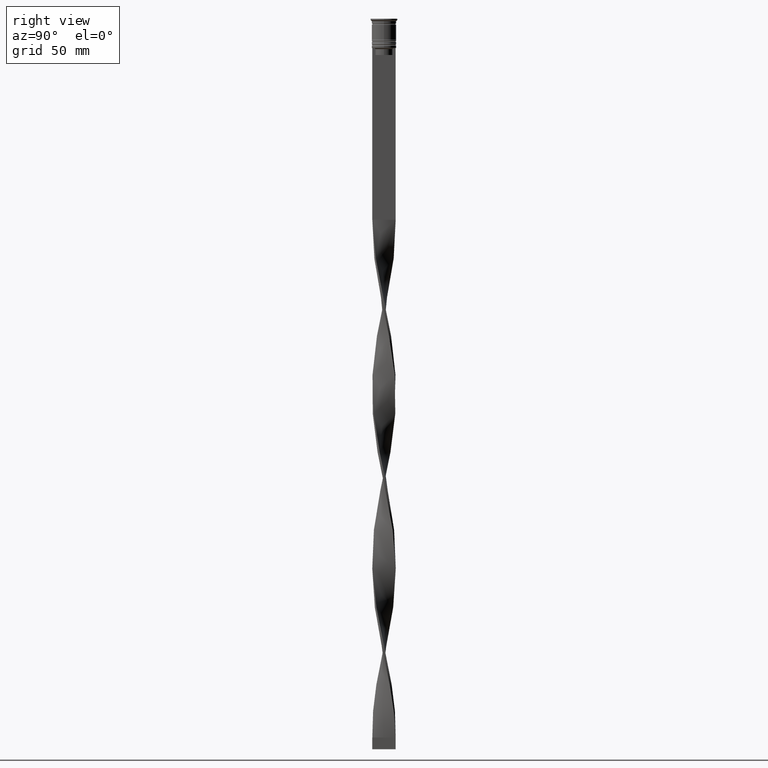
[diagram: clean part render]
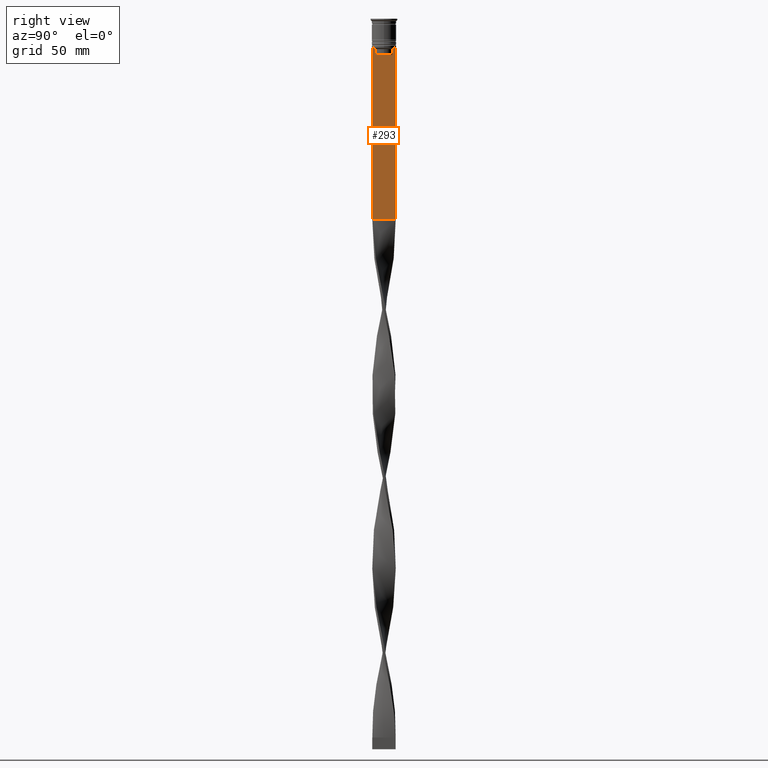
[diagram: same view with one face highlighted and labeled with its STEP entity id]
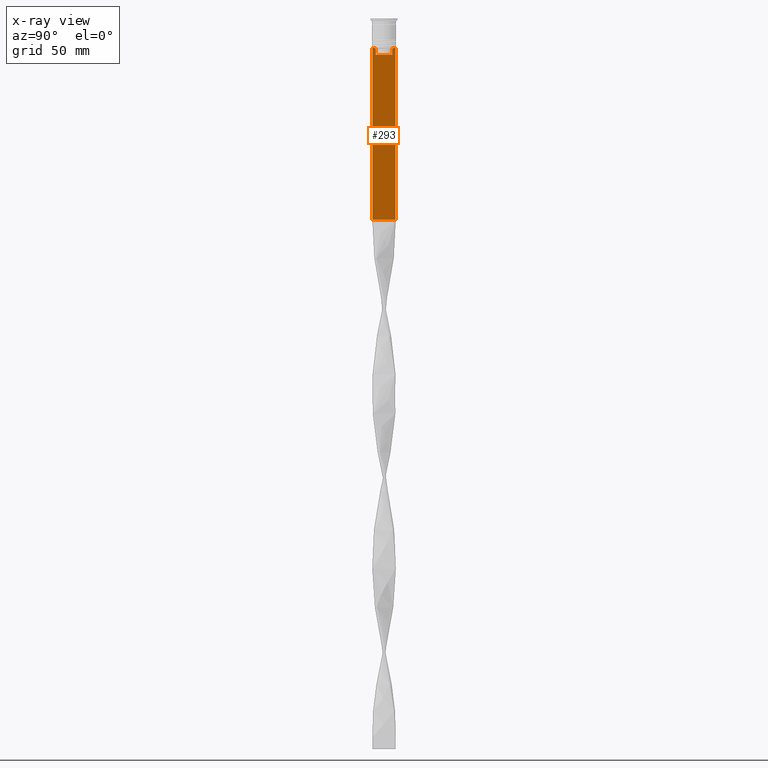
[diagram: x-ray of the same camera — body ghosted, the highlighted face saturated]
A machine part, right view. The second image highlights one B-rep face of the part: STEP entity #293.
The next image is the same camera in x-ray: the body ghosted, the highlighted face saturated — about 0% of this face is hidden behind the body in this view.
In plain terms, the highlighted planar face has unit normal (-1, 0, 0).
Its self-contained STEP definition (entity closure, byte-faithful):
#3 = LINE ( 'NONE', #247, #2136 ) ;
#41 = VECTOR ( 'NONE', #837, 1000.000000000000000 ) ;
#108 = ORIENTED_EDGE ( 'NONE', *, *, #1392, .T. ) ;
#111 = ORIENTED_EDGE ( 'NONE', *, *, #1682, .T. ) ;
#186 = EDGE_CURVE ( 'NONE', #315, #542, #1323, .T. ) ;
#189 = LINE ( 'NONE', #2352, #41 ) ;
#199 = CARTESIAN_POINT ( 'NONE',  ( 0.5000000000000000000, -4.119769411022908834, -12.50000000000000000 ) ) ;
#239 = VERTEX_POINT ( 'NONE', #3325 ) ;
#247 = CARTESIAN_POINT ( 'NONE',  ( 0.5000000000000000000, -4.999999999999999112, -2.450124378879110054 ) ) ;
#270 = ORIENTED_EDGE ( 'NONE', *, *, #1343, .T. ) ;
#293 = ADVANCED_FACE ( 'NONE', ( #362 ), #2215, .F. ) ;
#315 = VERTEX_POINT ( 'NONE', #3136 ) ;
#321 = DIRECTION ( 'NONE',  ( 0.000000000000000000, 1.000000000000000000, 0.000000000000000000 ) ) ;
#324 = DIRECTION ( 'NONE',  ( 0.000000000000000000, 0.000000000000000000, 1.000000000000000000 ) ) ;
#336 = VERTEX_POINT ( 'NONE', #942 ) ;
#339 = VERTEX_POINT ( 'NONE', #3397 ) ;
#362 = FACE_OUTER_BOUND ( 'NONE', #1913, .T. ) ;
#366 = DIRECTION ( 'NONE',  ( 0.000000000000000000, 0.000000000000000000, -1.000000000000000000 ) ) ;
#382 = CARTESIAN_POINT ( 'NONE',  ( 0.5000000000000000000, 3.951794205566887985, -12.66675159355373737 ) ) ;
#390 = ORIENTED_EDGE ( 'NONE', *, *, #186, .T. ) ;
#399 = CARTESIAN_POINT ( 'NONE',  ( 0.5000000000000000000, 3.783746449387932476, -12.83342999751715752 ) ) ;
#522 = LINE ( 'NONE', #1738, #1945 ) ;
#542 = VERTEX_POINT ( 'NONE', #1853 ) ;
#587 = CARTESIAN_POINT ( 'NONE',  ( 0.5000000000000000000, 5.000000000000000888, -86.00000000000000000 ) ) ;
#627 = ORIENTED_EDGE ( 'NONE', *, *, #776, .T. ) ;
#738 = VECTOR ( 'NONE', #366, 1000.000000000000000 ) ;
#776 = EDGE_CURVE ( 'NONE', #239, #339, #2794, .T. ) ;
#798 = VECTOR ( 'NONE', #3765, 1000.000000000000000 ) ;
#837 = DIRECTION ( 'NONE',  ( 0.000000000000000000, -1.000000000000000000, 0.000000000000000000 ) ) ;
#900 = EDGE_CURVE ( 'NONE', #2702, #3054, #3, .T. ) ;
#917 = LINE ( 'NONE', #3916, #1376 ) ;
#942 = CARTESIAN_POINT ( 'NONE',  ( 0.5000000000000000000, 3.615591237958188042, -13.00000000000000178 ) ) ;
#994 = VERTEX_POINT ( 'NONE', #587 ) ;
#1014 = EDGE_CURVE ( 'NONE', #3054, #994, #917, .T. ) ;
#1041 = CARTESIAN_POINT ( 'NONE',  ( 0.5000000000000000000, 4.119769411022908834, -12.50000000000000000 ) ) ;
#1059 = CARTESIAN_POINT ( 'NONE',  ( 0.5000000000000000000, 3.615591237958188486, -15.50000000000000000 ) ) ;
#1086 = CARTESIAN_POINT ( 'NONE',  ( 0.5000000000000000000, -3.951794168112527927, -12.66675163073525923 ) ) ;
#1195 = ORIENTED_EDGE ( 'NONE', *, *, #1014, .T. ) ;
#1268 = EDGE_CURVE ( 'NONE', #336, #1430, #2798, .T. ) ;
#1323 = LINE ( 'NONE', #3070, #1497 ) ;
#1343 = EDGE_CURVE ( 'NONE', #3720, #239, #1698, .T. ) ;
#1376 = VECTOR ( 'NONE', #321, 1000.000000000000000 ) ;
#1392 = EDGE_CURVE ( 'NONE', #339, #2702, #522, .T. ) ;
#1430 = VERTEX_POINT ( 'NONE', #1059 ) ;
#1497 = VECTOR ( 'NONE', #1901, 1000.000000000000000 ) ;
#1505 = ORIENTED_EDGE ( 'NONE', *, *, #1268, .T. ) ;
#1563 = VECTOR ( 'NONE', #3522, 1000.000000000000000 ) ;
#1600 = EDGE_CURVE ( 'NONE', #315, #994, #2561, .T. ) ;
#1652 = B_SPLINE_CURVE_WITH_KNOTS ( 'NONE', 3,
 ( #1041, #382, #399, #2868 ),
 .UNSPECIFIED., .F., .F.,
 ( 4, 4 ),
 ( 0.007067514914986626831, 0.007777582239375525376 ),
 .UNSPECIFIED. ) ;
#1682 = EDGE_CURVE ( 'NONE', #542, #336, #1652, .T. ) ;
#1698 = LINE ( 'NONE', #3808, #1563 ) ;
#1719 = CARTESIAN_POINT ( 'NONE',  ( 0.5000000000000000000, 3.615591237958188042, 0.000000000000000000 ) ) ;
#1738 = CARTESIAN_POINT ( 'NONE',  ( 0.5000000000000000000, -4.999999999999999112, -12.50000000000000000 ) ) ;
#1774 = CARTESIAN_POINT ( 'NONE',  ( 0.5000000000000000000, -4.999999999999999112, -12.50000000000000000 ) ) ;
#1853 = CARTESIAN_POINT ( 'NONE',  ( 0.5000000000000000000, 4.119769411022908834, -12.50000000000000000 ) ) ;
#1901 = DIRECTION ( 'NONE',  ( 0.000000000000000000, -1.000000000000000000, 0.000000000000000000 ) ) ;
#1913 = EDGE_LOOP ( 'NONE', ( #390, #111, #1505, #2117, #270, #627, #108, #1988, #1195, #3218 ) ) ;
#1945 = VECTOR ( 'NONE', #3215, 1000.000000000000000 ) ;
#1988 = ORIENTED_EDGE ( 'NONE', *, *, #900, .T. ) ;
#2117 = ORIENTED_EDGE ( 'NONE', *, *, #3490, .T. ) ;
#2136 = VECTOR ( 'NONE', #3642, 1000.000000000000000 ) ;
#2159 = CARTESIAN_POINT ( 'NONE',  ( 0.5000000000000000000, -4.999999999999999112, -2.450124378879110054 ) ) ;
#2173 = DIRECTION ( 'NONE',  ( -1.000000000000000000, 0.000000000000000000, 0.000000000000000000 ) ) ;
#2215 = PLANE ( 'NONE',  #3544 ) ;
#2352 = CARTESIAN_POINT ( 'NONE',  ( 0.5000000000000000000, 3.650000000000003464, -15.50000000000000000 ) ) ;
#2545 = CARTESIAN_POINT ( 'NONE',  ( 0.5000000000000000000, -4.999999999999999112, -86.00000000000000000 ) ) ;
#2561 = LINE ( 'NONE', #2884, #738 ) ;
#2702 = VERTEX_POINT ( 'NONE', #1774 ) ;
#2734 = CARTESIAN_POINT ( 'NONE',  ( 0.5000000000000000000, -3.615591237958188486, -15.50000000000000000 ) ) ;
#2794 = B_SPLINE_CURVE_WITH_KNOTS ( 'NONE', 3,
 ( #3813, #2948, #1086, #199 ),
 .UNSPECIFIED., .F., .F.,
 ( 4, 4 ),
 ( 0.01745179617248910492, 0.01816207215777258452 ),
 .UNSPECIFIED. ) ;
#2798 = LINE ( 'NONE', #1719, #798 ) ;
#2868 = CARTESIAN_POINT ( 'NONE',  ( 0.5000000000000000000, 3.615591237958188042, -13.00000000000000178 ) ) ;
#2884 = CARTESIAN_POINT ( 'NONE',  ( 0.5000000000000000000, 5.000000000000000888, -2.450124378879110054 ) ) ;
#2948 = CARTESIAN_POINT ( 'NONE',  ( 0.5000000000000000000, -3.783746406711539390, -12.83343003979123509 ) ) ;
#3054 = VERTEX_POINT ( 'NONE', #2545 ) ;
#3070 = CARTESIAN_POINT ( 'NONE',  ( 0.5000000000000000000, -4.999999999999999112, -12.50000000000000000 ) ) ;
#3136 = CARTESIAN_POINT ( 'NONE',  ( 0.5000000000000000000, 5.000000000000000888, -12.50000000000000000 ) ) ;
#3215 = DIRECTION ( 'NONE',  ( 0.000000000000000000, -1.000000000000000000, 0.000000000000000000 ) ) ;
#3218 = ORIENTED_EDGE ( 'NONE', *, *, #1600, .F. ) ;
#3325 = CARTESIAN_POINT ( 'NONE',  ( 0.5000000000000000000, -3.615591237958188042, -13.00000000000000178 ) ) ;
#3397 = CARTESIAN_POINT ( 'NONE',  ( 0.5000000000000000000, -4.119769411022908834, -12.50000000000000000 ) ) ;
#3490 = EDGE_CURVE ( 'NONE', #1430, #3720, #189, .T. ) ;
#3522 = DIRECTION ( 'NONE',  ( -0.000000000000000000, -0.000000000000000000, 1.000000000000000000 ) ) ;
#3544 = AXIS2_PLACEMENT_3D ( 'NONE', #2159, #2173, #324 ) ;
#3642 = DIRECTION ( 'NONE',  ( 0.000000000000000000, 0.000000000000000000, -1.000000000000000000 ) ) ;
#3720 = VERTEX_POINT ( 'NONE', #2734 ) ;
#3765 = DIRECTION ( 'NONE',  ( 0.000000000000000000, 0.000000000000000000, -1.000000000000000000 ) ) ;
#3808 = CARTESIAN_POINT ( 'NONE',  ( 0.5000000000000000000, -3.615591237958188042, 0.000000000000000000 ) ) ;
#3813 = CARTESIAN_POINT ( 'NONE',  ( 0.5000000000000000000, -3.615591237958188042, -13.00000000000000178 ) ) ;
#3916 = CARTESIAN_POINT ( 'NONE',  ( 0.5000000000000000000, -4.999999999999999112, -86.00000000000000000 ) ) ;